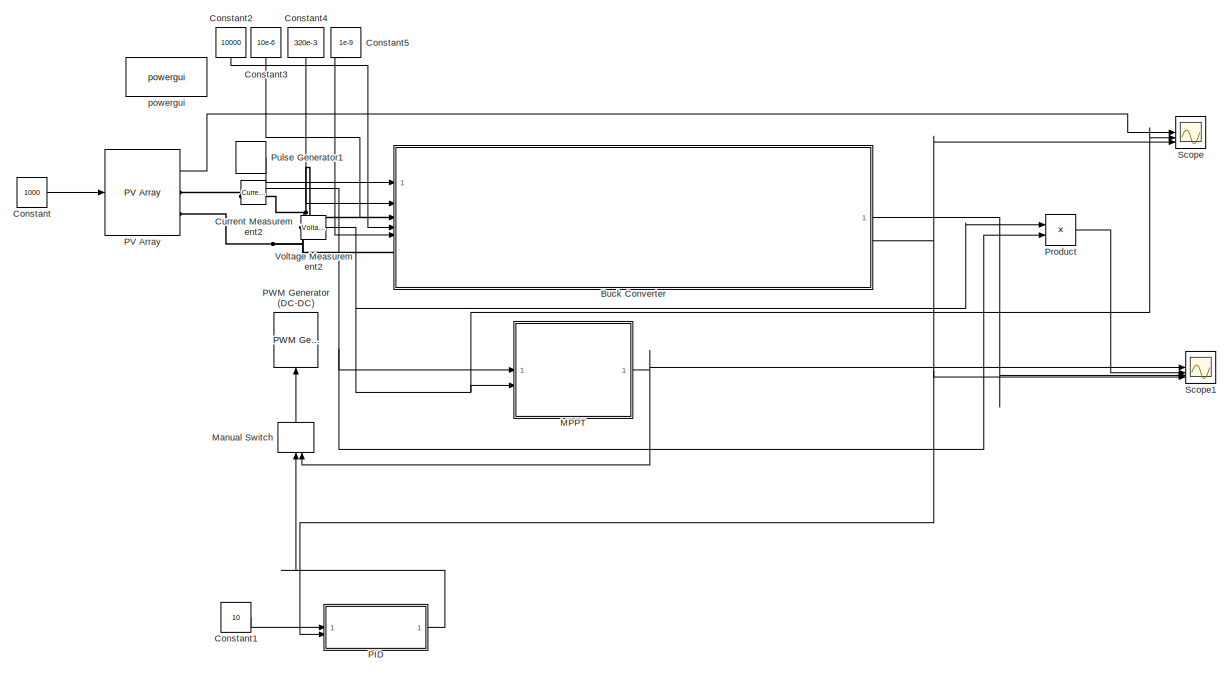
[diagram: root canvas - part 1/2, left side, full height]
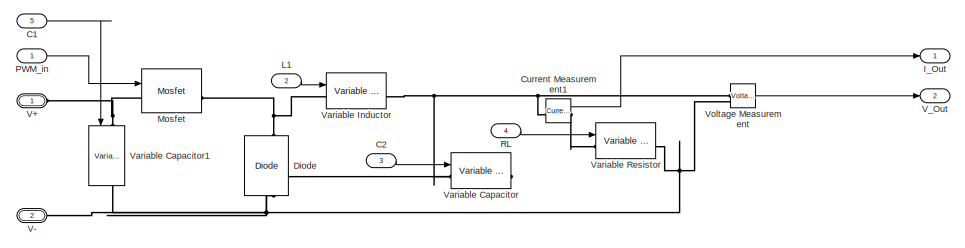
[diagram: root canvas - part 2/2, middle right region]
MODEL slx_b22b78a973b3
KIND model
CONFIG AbsTol = auto
CONFIG EnableMultiTasking = off
CONFIG FixedStep = auto
CONFIG MaxStep = auto
CONFIG MinStep = auto
CONFIG RelTol = 1e-3
CONFIG SampleTimeConstraint = Unconstrained
CONFIG SolverName = VariableStepAuto
CONFIG StartTime = 0.0
CONFIG StopTime = 0.5
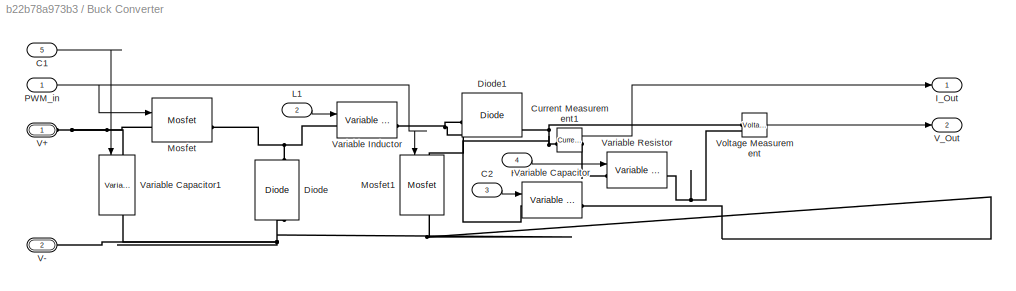
BLOCK [SubSystem] Buck Converter
BLOCK [Inport] Buck Converter/C1
  Port = 5
BLOCK [Inport] Buck Converter/C2
  Port = 3
BLOCK [Reference] Buck Converter/Current Measurement1  REF=spsCurrentMeasurementLib/Current Measurement
  LibrarySourceBlock = sps_lib/Sensors and Measurements/Current Measurement
  SourceBlock = spsCurrentMeasurementLib/Current Measurement
  SourceType = Current Measurement
  UserDataPersistent = on
BLOCK [Reference] Buck Converter/Diode  REF=spsDiodeLib/Diode
  LibrarySourceBlock = sps_lib/Power Electronics/Diode
  NameLocation = right
  SourceBlock = spsDiodeLib/Diode
  SourceType = Diode
BLOCK [Reference] Buck Converter/Diode1  REF=spsDiodeLib/Diode
  LibrarySourceBlock = sps_lib/Power Electronics/Diode
  SourceBlock = spsDiodeLib/Diode
  SourceType = Diode
BLOCK [Outport] Buck Converter/I_Out
BLOCK [Inport] Buck Converter/L1
  Port = 2
BLOCK [Reference] Buck Converter/Mosfet  REF=spsMosfetLib/Mosfet
  LibrarySourceBlock = sps_lib/Power Electronics/Mosfet
  SourceBlock = spsMosfetLib/Mosfet
  SourceType = Mosfet
BLOCK [Reference] Buck Converter/Mosfet1  REF=spsMosfetLib/Mosfet
  LibrarySourceBlock = sps_lib/Power Electronics/Mosfet
  NameLocation = left
  SourceBlock = spsMosfetLib/Mosfet
  SourceType = Mosfet
BLOCK [Inport] Buck Converter/PWM_in
BLOCK [Inport] Buck Converter/RL
  Port = 4
BLOCK [PMIOPort] Buck Converter/V+
  Side = Left
BLOCK [PMIOPort] Buck Converter/V-
  Port = 2
  Side = Left
BLOCK [Outport] Buck Converter/V_Out
  Port = 2
BLOCK [Reference] Buck Converter/Variable Capacitor  REF=spsVariableCapacitorLib/Variable Capacitor
  LibrarySourceBlock = sps_lib/Passives/Variable Capacitor
  SourceBlock = spsVariableCapacitorLib/Variable Capacitor
  SourceType = Variable Capacitor
BLOCK [Reference] Buck Converter/Variable Capacitor1  REF=spsVariableCapacitorLib/Variable Capacitor
  LibrarySourceBlock = sps_lib/Passives/Variable Capacitor
  NameLocation = left
  SourceBlock = spsVariableCapacitorLib/Variable Capacitor
  SourceType = Variable Capacitor
BLOCK [Reference] Buck Converter/Variable Inductor  REF=spsVariableInductorLib/Variable Inductor
  LibrarySourceBlock = sps_lib/Passives/Variable Inductor
  SourceBlock = spsVariableInductorLib/Variable Inductor
  SourceType = Variable Inductor
BLOCK [Reference] Buck Converter/Variable Resistor  REF=spsVariableResistorLib/Variable Resistor
  LibrarySourceBlock = sps_lib/Passives/Variable Resistor
  SourceBlock = spsVariableResistorLib/Variable Resistor
  SourceType = Variable Resistor
BLOCK [Reference] Buck Converter/Voltage Measurement  REF=spsVoltageMeasurementLib/Voltage Measurement
  LibrarySourceBlock = sps_lib/Sensors and Measurements/Voltage Measurement
  SourceBlock = spsVoltageMeasurementLib/Voltage Measurement
  SourceType = Voltage Measurement
  UserDataPersistent = on
BLOCK [Inport] C1
  Port = 5
BLOCK [Inport] C2
  Port = 3
BLOCK [Constant] Constant
  Value = 1000
BLOCK [Constant] Constant1
  Value = 10
BLOCK [Constant] Constant2
  NameLocation = left
  Value = 10000
BLOCK [Constant] Constant3
  NameLocation = left
  Value = 10e-6
BLOCK [Constant] Constant4
  NameLocation = left
  Value = 320e-3
BLOCK [Constant] Constant5
  NameLocation = left
  Value = 1e-9
BLOCK [Reference] Current Measurement1  REF=spsCurrentMeasurementLib/Current Measurement
  LibrarySourceBlock = sps_lib/Sensors and Measurements/Current Measurement
  SourceBlock = spsCurrentMeasurementLib/Current Measurement
  SourceType = Current Measurement
  UserDataPersistent = on
BLOCK [Reference] Current Measurement2  REF=spsCurrentMeasurementLib/Current Measurement
  LibrarySourceBlock = sps_lib/Sensors and Measurements/Current Measurement
  SourceBlock = spsCurrentMeasurementLib/Current Measurement
  SourceType = Current Measurement
  UserDataPersistent = on
BLOCK [Reference] Diode  REF=spsDiodeLib/Diode
  LibrarySourceBlock = sps_lib/Power Electronics/Diode
  NameLocation = right
  SourceBlock = spsDiodeLib/Diode
  SourceType = Diode
BLOCK [Outport] I_Out
BLOCK [Inport] L1
  Port = 2
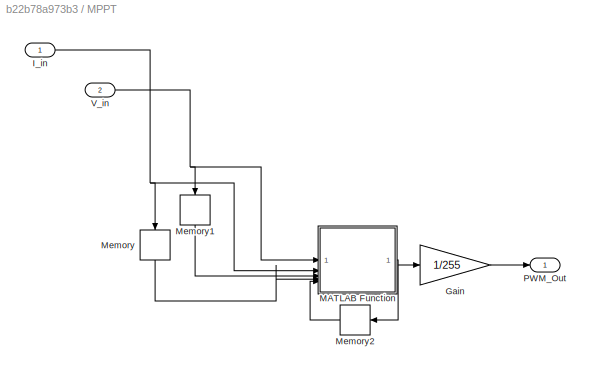
BLOCK [SubSystem] MPPT
BLOCK [Gain] MPPT/Gain
  Gain = 1/255
BLOCK [Inport] MPPT/I_in
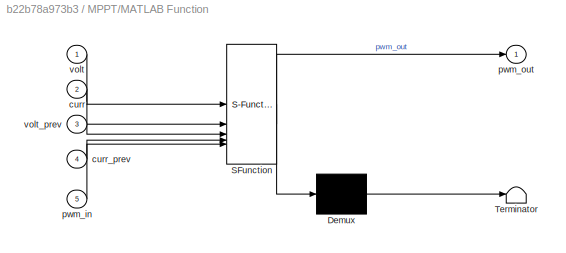
BLOCK [SubSystem] MPPT/MATLAB Function
  ErrorFcn = Stateflow.Translate.translate
  LibrarySourceBlock = simulink/User-Defined\nFunctions/MATLAB Function
  PermitHierarchicalResolution = ExplicitOnly
  SFBlockType = MATLAB Function
  TreatAsAtomicUnit = on
BLOCK [Demux] MPPT/MATLAB Function/ Demux 
  Outputs = 1
BLOCK [S-Function] MPPT/MATLAB Function/ SFunction 
  EnableBusSupport = on
  FunctionName = sf_sfun
  PortCounts = [5 2]
  SFcnIsStateOwnerBlock = off
  SFunctionDeploymentMode = off
  Tag = Stateflow S-Function 2
BLOCK [Terminator] MPPT/MATLAB Function/ Terminator 
BLOCK [Inport] MPPT/MATLAB Function/curr
  Port = 2
BLOCK [Inport] MPPT/MATLAB Function/curr_prev
  Port = 4
BLOCK [Inport] MPPT/MATLAB Function/pwm_in
  Port = 5
BLOCK [Outport] MPPT/MATLAB Function/pwm_out
BLOCK [Inport] MPPT/MATLAB Function/volt
BLOCK [Inport] MPPT/MATLAB Function/volt_prev
  Port = 3
BLOCK [Memory] MPPT/Memory
  InheritSampleTime = on
  NameLocation = left
BLOCK [Memory] MPPT/Memory1
  InheritSampleTime = on
  NameLocation = left
BLOCK [Memory] MPPT/Memory2
  InheritSampleTime = on
  NameLocation = top
BLOCK [Outport] MPPT/PWM_Out
BLOCK [Inport] MPPT/V_in
  Port = 2
BLOCK [ManualSwitch] Manual Switch
  CurrentSetting = 0
  NameLocation = right
BLOCK [Reference] Mosfet  REF=spsMosfetLib/Mosfet
  LibrarySourceBlock = sps_lib/Power Electronics/Mosfet
  SourceBlock = spsMosfetLib/Mosfet
  SourceType = Mosfet
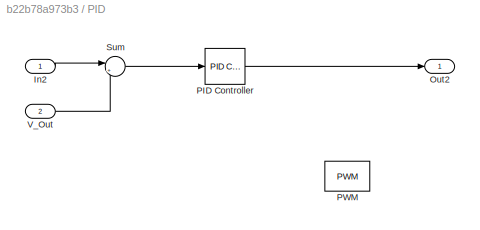
BLOCK [SubSystem] PID
BLOCK [Inport] PID/In2
BLOCK [Outport] PID/Out2
BLOCK [Reference] PID/PID Controller  REF=slpidlib/PID Controller
  LibrarySourceBlock = simulink/Continuous/PID Controller
  SourceBlock = slpidlib/PID Controller
  SourceType = PID 1dof
BLOCK [Reference] PID/PWM  REF=simulink/Discontinuities/PWM
  Commented = on
  DisableCoverage = on
  SourceBlock = simulink/Discontinuities/PWM
  SourceType = PWM
BLOCK [Sum] PID/Sum
  Inputs = |+-
BLOCK [Inport] PID/V_Out
  Port = 2
BLOCK [Reference] PV Array  REF=spsPVArrayLib/PV Array
  LibrarySourceBlock = sps_lib/Sources/PV Array
  SourceBlock = spsPVArrayLib/PV Array
  SourceType = PV array
BLOCK [Reference] PWM Generator (DC-DC)  REF=spsPWMGeneratorDCDCLib/PWM Generator
(DC-DC)
  LibrarySourceBlock = sps_lib/Power Electronics/Power Electronics Control/PWM Generator\n(DC-DC)
  NameLocation = right
  SourceBlock = spsPWMGeneratorDCDCLib/PWM Generator\n(DC-DC)
  SourceType = PWM Generator (DC-DC)
BLOCK [Inport] PWM_in
BLOCK [Product] Product
BLOCK [DiscretePulseGenerator] Pulse Generator1
  Amplitude = 5
  Period = 1/32000
  PulseType = Time based
  PulseWidth = 80
BLOCK [Inport] RL
  Port = 4
BLOCK [Scope] Scope
  Floating = off
  NumInputPorts = 4
  ScopeSpecificationString = Simulink.scopes.TimeScopeBlockCfg('CurrentConfiguration', extmgr.ConfigurationSet(extmgr.Configuration('Core','General UI',true),extmgr.Configuration('Core','Source UI',true),extmgr.Configuration('Sources','WiredSimulink',true),extmgr.Configuration('Visuals','Time Domain',true,'SerializedDisplays',{struct('MinYLimReal','-125.00000','MaxYLimReal','1125.00000','YLabelReal','','MinYLimMag',' 0.00000'...<+2132ch>
BLOCK [Scope] Scope1
  Floating = off
  NumInputPorts = 4
  ScopeSpecificationString = Simulink.scopes.TimeScopeBlockCfg('CurrentConfiguration', extmgr.ConfigurationSet(extmgr.Configuration('Core','General UI',true),extmgr.Configuration('Core','Source UI',true),extmgr.Configuration('Sources','WiredSimulink',true,'DataLoggingVariableName','ScopeData1'),extmgr.Configuration('Visuals','Time Domain',true,'SerializedDisplays',{struct('MinYLimReal','-14.92609','MaxYLimReal','134.33484','Y...<+2088ch>
BLOCK [PMIOPort] V+
  Side = Left
BLOCK [PMIOPort] V-
  Port = 2
  Side = Left
BLOCK [Outport] V_Out
  Port = 2
BLOCK [Reference] Variable Capacitor  REF=spsVariableCapacitorLib/Variable Capacitor
  LibrarySourceBlock = sps_lib/Passives/Variable Capacitor
  SourceBlock = spsVariableCapacitorLib/Variable Capacitor
  SourceType = Variable Capacitor
BLOCK [Reference] Variable Capacitor1  REF=spsVariableCapacitorLib/Variable Capacitor
  LibrarySourceBlock = sps_lib/Passives/Variable Capacitor
  NameLocation = left
  SourceBlock = spsVariableCapacitorLib/Variable Capacitor
  SourceType = Variable Capacitor
BLOCK [Reference] Variable Inductor  REF=spsVariableInductorLib/Variable Inductor
  LibrarySourceBlock = sps_lib/Passives/Variable Inductor
  SourceBlock = spsVariableInductorLib/Variable Inductor
  SourceType = Variable Inductor
BLOCK [Reference] Variable Resistor  REF=spsVariableResistorLib/Variable Resistor
  LibrarySourceBlock = sps_lib/Passives/Variable Resistor
  SourceBlock = spsVariableResistorLib/Variable Resistor
  SourceType = Variable Resistor
BLOCK [Reference] Voltage Measurement  REF=spsVoltageMeasurementLib/Voltage Measurement
  LibrarySourceBlock = sps_lib/Sensors and Measurements/Voltage Measurement
  SourceBlock = spsVoltageMeasurementLib/Voltage Measurement
  SourceType = Voltage Measurement
  UserDataPersistent = on
BLOCK [Reference] Voltage Measurement2  REF=spsVoltageMeasurementLib/Voltage Measurement
  LibrarySourceBlock = sps_lib/Sensors and Measurements/Voltage Measurement
  SourceBlock = spsVoltageMeasurementLib/Voltage Measurement
  SourceType = Voltage Measurement
  UserDataPersistent = on
BLOCK [Reference] powergui  REF=spspowerguiLib/powergui
  Priority = 1
  SourceBlock = spspowerguiLib/powergui
  SourceType = PSB option menu block
LINE Buck Converter/C1:1 -> Buck Converter/Variable Capacitor1:1
LINE Buck Converter/C2:1 -> Buck Converter/Variable Capacitor:1
LINE Buck Converter/Current Measurement1:1 -> Buck Converter/I_Out:1
LINE Buck Converter/L1:1 -> Buck Converter/Variable Inductor:1
NET Buck Converter/PWM_in:1 -> Buck Converter/Mosfet1:1, Buck Converter/Mosfet:1
LINE Buck Converter/RL:1 -> Buck Converter/Variable Resistor:1
LINE Buck Converter/Voltage Measurement:1 -> Buck Converter/V_Out:1
LINE Buck Converter:1 -> Scope1:3
NET Buck Converter:2 -> PID:2, Scope1:4, Scope:4
LINE C1:1 -> Variable Capacitor1:1
LINE C2:1 -> Variable Capacitor:1
LINE Constant1:1 -> PID:1
LINE Constant2:1 -> Buck Converter:4
LINE Constant3:1 -> Buck Converter:3
LINE Constant4:1 -> Buck Converter:2
LINE Constant5:1 -> Buck Converter:5
LINE Constant:1 -> PV Array:1
LINE Current Measurement1:1 -> I_Out:1
NET Current Measurement2:1 -> MPPT:1, Product:2
LINE L1:1 -> Variable Inductor:1
LINE MPPT/Gain:1 -> MPPT/PWM_Out:1
NET MPPT/I_in:1 -> MPPT/MATLAB Function:2, MPPT/Memory:1
NET MPPT/MATLAB Function:1 -> MPPT/Gain:1, MPPT/Memory2:1
LINE MPPT/Memory1:1 -> MPPT/MATLAB Function:3
LINE MPPT/Memory2:1 -> MPPT/MATLAB Function:5
LINE MPPT/Memory:1 -> MPPT/MATLAB Function:4
NET MPPT/V_in:1 -> MPPT/MATLAB Function:1, MPPT/Memory1:1
NET MPPT:1 -> Manual Switch:2, Scope1:1
LINE Manual Switch:1 -> PWM Generator (DC-DC):1
LINE PID/In2:1 -> PID/Sum:1
LINE PID/PID Controller:1 -> PID/Out2:1
LINE PID/Sum:1 -> PID/PID Controller:1
LINE PID/V_Out:1 -> PID/Sum:2
LINE PID:1 -> Manual Switch:1
LINE PV Array:1 -> Scope:1
LINE PWM_in:1 -> Mosfet:1
LINE Product:1 -> Scope1:2
LINE Pulse Generator1:1 -> Buck Converter:1
LINE RL:1 -> Variable Resistor:1
NET Voltage Measurement2:1 -> MPPT:2, Product:1, Scope:2
LINE Voltage Measurement:1 -> V_Out:1
PNET net1: Buck Converter/Current Measurement1:LConn1 -- Buck Converter/Diode1:RConn1 -- Buck Converter/Variable Capacitor:LConn1 -- Buck Converter/Voltage Measurement:LConn1
PLINE Buck Converter/Current Measurement1:RConn1 -- Buck Converter/Variable Resistor:LConn1
PNET net2: Buck Converter/Diode1:LConn1 -- Buck Converter/Mosfet1:LConn1 -- Buck Converter/Variable Inductor:RConn1
PNET net3: Buck Converter/Diode:LConn1 -- Buck Converter/Mosfet1:RConn1 -- Buck Converter/V-:RConn1 -- Buck Converter/Variable Capacitor1:RConn1 -- Buck Converter/Variable Capacitor:RConn1 -- Buck Converter/Variable Resistor:RConn1 -- Buck Converter/Voltage Measurement:LConn2
PNET net4: Buck Converter/Diode:RConn1 -- Buck Converter/Mosfet:RConn1 -- Buck Converter/Variable Inductor:LConn1
PNET net5: Buck Converter/Mosfet:LConn1 -- Buck Converter/V+:RConn1 -- Buck Converter/Variable Capacitor1:LConn1
PNET net6: Buck Converter:LConn1 -- Current Measurement2:RConn1 -- Voltage Measurement2:LConn1
PNET net7: Buck Converter:LConn2 -- PV Array:RConn2 -- Voltage Measurement2:LConn2
PNET net8: Current Measurement1:LConn1 -- Variable Capacitor:LConn1 -- Variable Inductor:RConn1 -- Voltage Measurement:LConn1
PLINE Current Measurement1:RConn1 -- Variable Resistor:LConn1
PLINE Current Measurement2:LConn1 -- PV Array:RConn1
PNET net9: Diode:LConn1 -- V-:RConn1 -- Variable Capacitor1:RConn1 -- Variable Capacitor:RConn1 -- Variable Resistor:RConn1 -- Voltage Measurement:LConn2
PNET net10: Diode:RConn1 -- Mosfet:RConn1 -- Variable Inductor:LConn1
PNET net11: Mosfet:LConn1 -- V+:RConn1 -- Variable Capacitor1:LConn1
note: NET lines group one-source signal fan-out (src -> all destinations, sorted); 1:1 wires keep LINE; PNET lines group multi-terminal physical nets as a canonical sorted terminal list (undirected conserving connections); 2-terminal nets keep the pairwise PLINE form
CHART MPPT/MATLAB Function states=1 transitions=1
  STATE_LABEL 'eML_blk_kernel()'
  STATE_LABEL 'SCRIPT:\nfunction pwm_out = fcn(volt, curr, volt_prev, curr_prev, pwm_in)\n\n% Code to update the PWM voltage\ndelta_v = volt - volt_prev;\ndelta_i = curr - curr_prev;\n\ndelta_const = curr + (delta_i/delta_v)*volt;\n\nif delta_v == 0\n    if delta_i == 0\n        pwm_out = pwm_in;\n    elseif delta_i > 0\n        pwm_out = pwm_in + 1;\n    else\n        pwm_out = pwm_in - 1;\n    end\nelseif delta_const == 0\n    ...<+203ch>'
CHART  states=0 transitions=0
